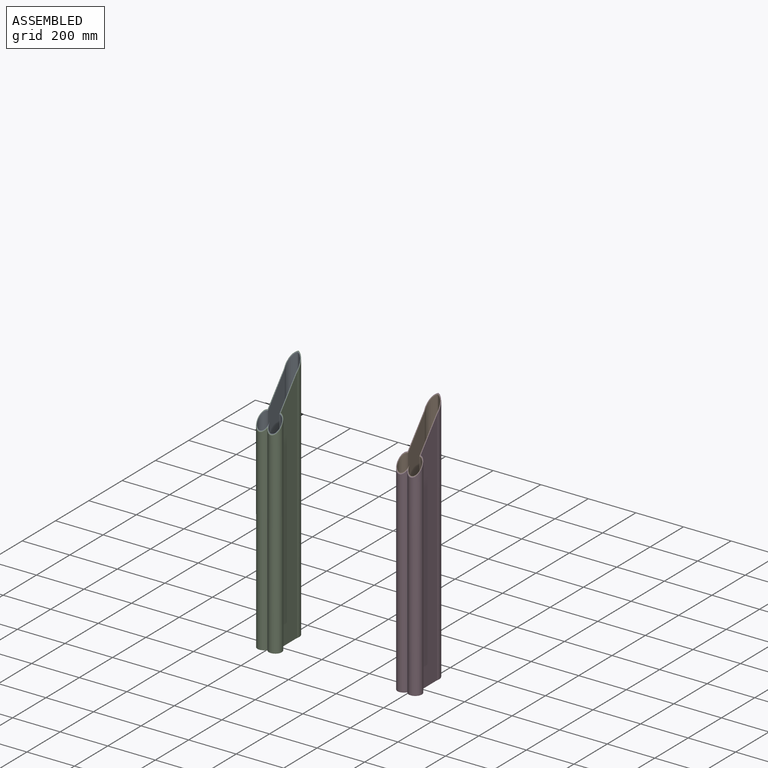
[diagram: assembled view]
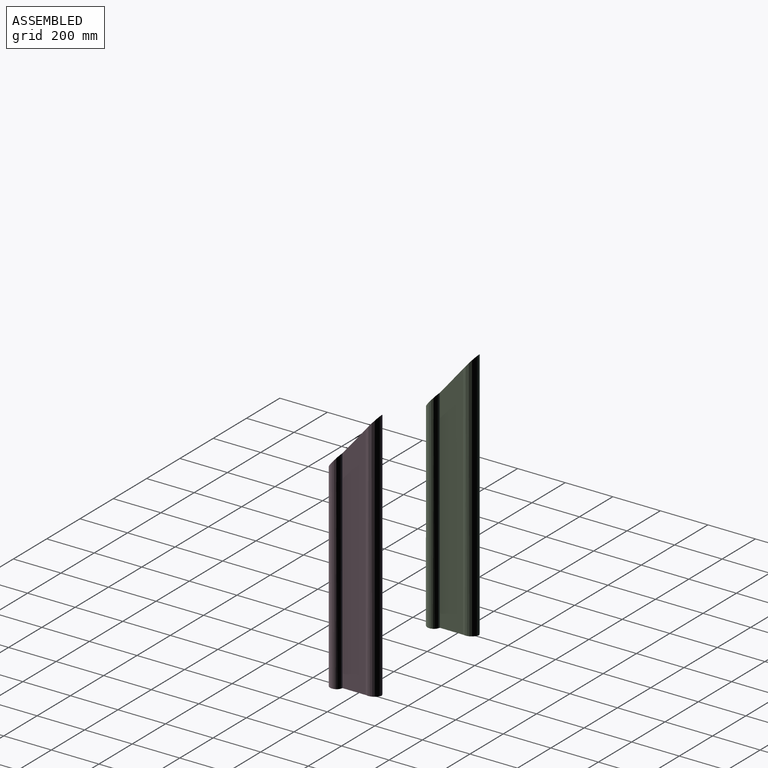
[diagram: assembled view, second angle]
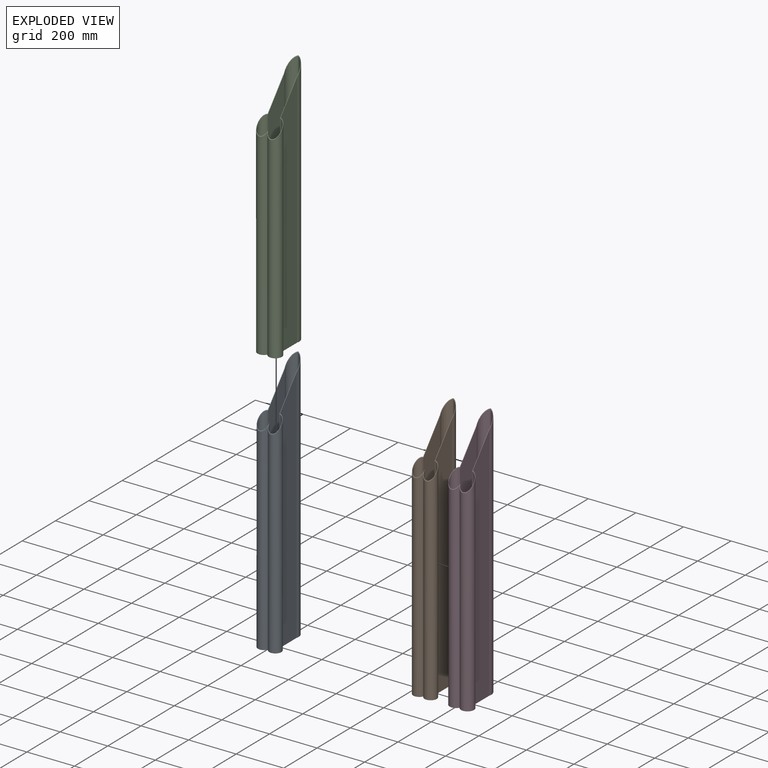
[diagram: exploded view]
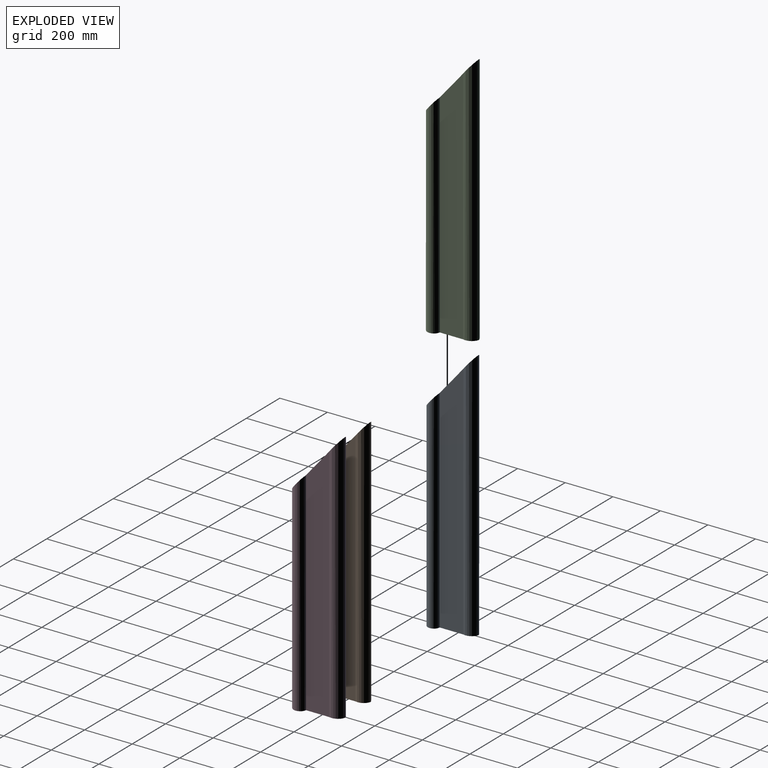
[diagram: exploded view, second angle]
ASSEMBLY  parts=4 mates=2
PART A: 14 faces, bbox 98.8x196.9x1064.6 mm
  f0: cylinder r=36.58mm len=1064.61mm, axis (0,0,-1), area 61380.4mm2, adj f1,f11,f12,f13
  f1: plane 1009.62x99.61mm, normal (-1,0,0), area 94657.5mm2, adj f0,f2,f12,f13
  f2: cylinder r=25.59mm len=890.9mm, axis (0,0,-1), area 93198.9mm2, adj f1,f3,f12,f13
  f3: cylinder r=25.59mm len=890.9mm, axis (0,0,-1), area 93199mm2, adj f2,f4,f12,f13
  f4: plane 1009.62x99.61mm, normal (1,0,0), area 94657.5mm2, adj f3,f11,f12,f13
  f5: cylinder r=23.81mm len=888.86mm, axis (0,0,-1), area 95881.9mm2, adj f6,f10,f12,f13
  f6: cylinder r=23.81mm len=888.86mm, axis (0,0,-1), area 95881.9mm2, adj f5,f7,f12,f13
  f7: plane 1009.94x101.6mm, normal (1,0,0), area 96459mm2, adj f6,f8,f12,f13
  f8: cylinder r=34.8mm len=1062.42mm, axis (0,0,-1), area 58111.7mm2, adj f7,f9,f12,f13
  f9: cylinder r=34.8mm len=1062.42mm, axis (0,0,-1), area 58111.7mm2, adj f8,f10,f12,f13
  f10: plane 1009.94x101.6mm, normal (-1,0,0), area 96459mm2, adj f5,f9,f12,f13
  f11: cylinder r=36.58mm len=1064.61mm, axis (0,0,-1), area 61380.4mm2, adj f0,f4,f12,f13
  f12: plane 196.88x98.81mm, normal (0,0,-1), area 950.2mm2, adj f0,f1,f2,f3,f4,f5,f6,f7
  f13: plane 234.63x196.88mm, normal (0,-0.77,0.64), area 1478.3mm2, adj f0,f1,f2,f3,f4,f5,f6,f7
PART B: same geometry as A
PART C: 14 faces, bbox 102.4x200.5x1066.8 mm
  f0: cylinder r=38.35mm len=1066.8mm, axis (0,0,-1), area 64648.5mm2, adj f1,f11,f12,f13
  f1: cylinder r=38.35mm len=1066.8mm, axis (0,0,-1), area 64648.5mm2, adj f0,f2,f12,f13
  f2: plane 1009.3x97.74mm, normal (-1,0,0), area 92956.2mm2, adj f1,f3,f12,f13
  f3: cylinder r=27.37mm len=892.82mm, axis (0,0,-1), area 94876.8mm2, adj f2,f4,f12,f13
  f4: cylinder r=27.37mm len=892.82mm, axis (0,0,-1), area 94876.8mm2, adj f3,f11,f12,f13
  f5: plane 1009.62x99.61mm, normal (1,0,0), area 94657.5mm2, adj f6,f10,f12,f13
  f6: cylinder r=36.58mm len=1064.61mm, axis (0,0,-1), area 61380.4mm2, adj f5,f7,f12,f13
  f7: cylinder r=36.58mm len=1064.61mm, axis (0,0,-1), area 61380.4mm2, adj f6,f8,f12,f13
  f8: plane 1009.62x99.61mm, normal (-1,0,0), area 94657.5mm2, adj f7,f9,f12,f13
  f9: cylinder r=25.59mm len=890.9mm, axis (0,0,-1), area 93199mm2, adj f8,f10,f12,f13
  f10: cylinder r=25.59mm len=890.9mm, axis (0,0,-1), area 93198.9mm2, adj f5,f9,f12,f13
  f11: plane 1009.3x97.74mm, normal (1,0,0), area 92956.2mm2, adj f0,f4,f12,f13
  f12: plane 200.49x102.36mm, normal (0,0,-1), area 957.7mm2, adj f0,f1,f2,f3,f4,f5,f6,f7
  f13: plane 238.94x200.49mm, normal (0,-0.77,0.64), area 1489.9mm2, adj f0,f1,f2,f3,f4,f5,f6,f7
PART D: same geometry as C
PLACE A t=(-968.37,-10.14,-94.42)mm
PLACE B t=(-381.24,-7.9,-98.98)mm
PLACE C t=(-968.37,-10.14,-94.42)mm
PLACE D t=(-381.24,-7.9,-98.98)mm
MATE fastened C.f12 <-> A.f12  axis (0,0,1) through (-968.37,-82.22,-94.42)mm
MATE fastened D.f12 <-> B.f12  axis (0,0,1) through (-381.24,-79.98,-98.98)mm
